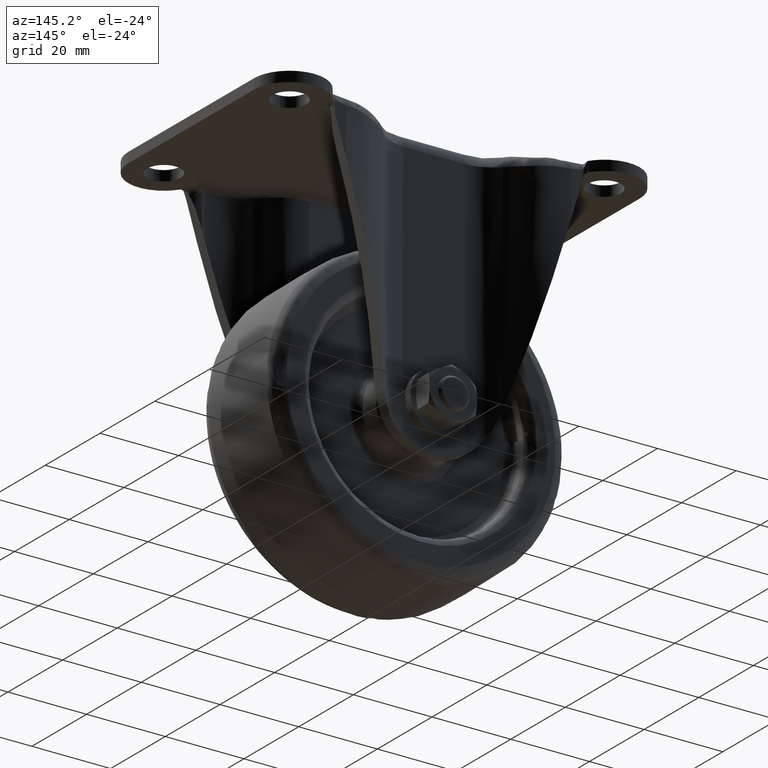
[diagram: clean part render]
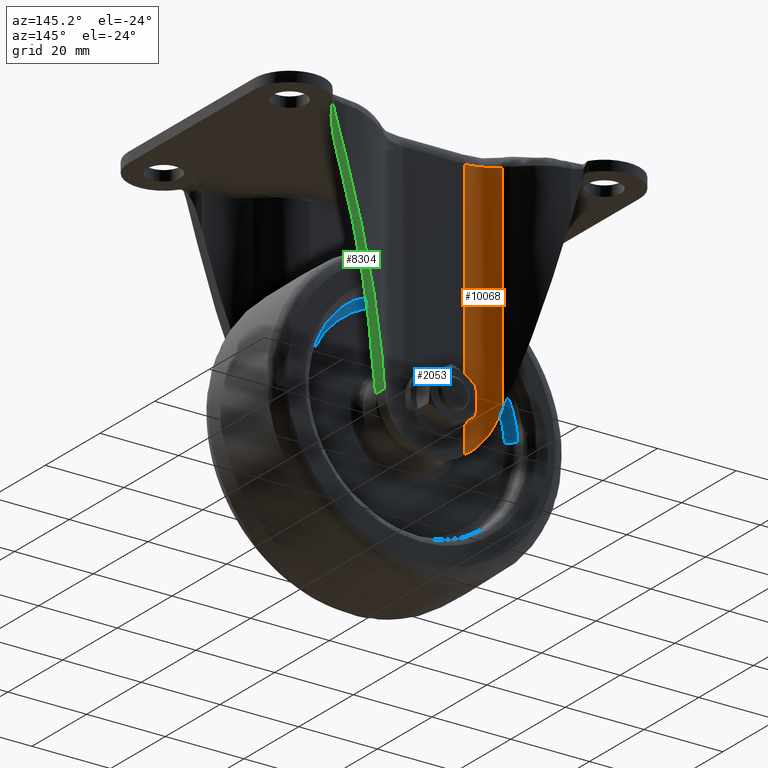
[diagram: same view with three faces highlighted in distinct colors, each labeled with its STEP entity id]
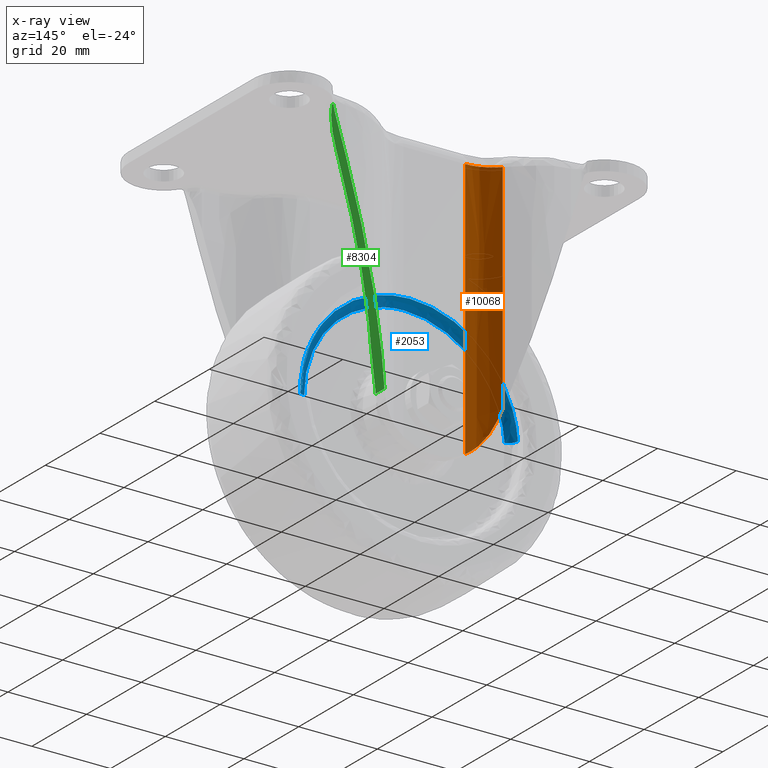
[diagram: x-ray of the same camera — body ghosted, the three highlighted faces saturated]
A machine part, auxiliary view with three faces highlighted in distinct colors.
The next image is the same camera in x-ray (body ghosted, the three faces saturated) — at least one of them is partly hidden behind the body in this view.
Their STEP definitions:

[orange] entity #10068 — the highlighted face is a freeform B-spline surface patch.
#5801=CARTESIAN_POINT('',(-7.828835999999789,18.399999999999999,-3.499999999999950));
#5802=VERTEX_POINT('',#5801);
#5849=CARTESIAN_POINT('',(-15.163778496053350,21.603043432565698,-3.499999999999950));
#5850=VERTEX_POINT('',#5849);
#5880=CARTESIAN_POINT('',(-15.163778496053331,21.603043432565720,-3.499999999999950));
#5881=CARTESIAN_POINT('',(-12.195664280233867,18.399999999999995,-3.499999999999950));
#5882=CARTESIAN_POINT('',(-7.828835999999799,18.399999999999999,-3.499999999999950));
#5890=(BOUNDED_CURVE()B_SPLINE_CURVE(2,(#5880,#5881,#5882),.UNSPECIFIED.,.F.,.U.)CURVE()GEOMETRIC_REPRESENTATION_ITEM()QUASI_UNIFORM_CURVE()RATIONAL_B_SPLINE_CURVE((1.0,0.916432118801886,1.0))REPRESENTATION_ITEM(''));
#5891=EDGE_CURVE('',#5850,#5802,#5890,.T.);
#8428=CARTESIAN_POINT('',(-14.361851424905581,20.829021895557801,-61.328649590222902));
#8429=VERTEX_POINT('',#8428);
#8435=CARTESIAN_POINT('',(-7.828835999999799,18.399999999999999,-69.794892671915406));
#8436=VERTEX_POINT('',#8435);
#8437=CARTESIAN_POINT('',(-14.361851424905581,20.829021895557801,-61.328649590222902));
#8438=CARTESIAN_POINT('',(-14.229742719177811,20.715024971992879,-61.766967530966170));
#8439=CARTESIAN_POINT('',(-14.079463098631701,20.591392774093869,-62.193265368079381));
#8440=CARTESIAN_POINT('',(-13.743893704264391,20.334221780271609,-63.025501558111571));
#8441=CARTESIAN_POINT('',(-13.558593913236880,20.200660019163120,-63.431427575738752));
#8442=CARTESIAN_POINT('',(-13.152698675603530,19.931482533703651,-64.225319654642092));
#8443=CARTESIAN_POINT('',(-12.932104136858030,19.795841396506049,-64.613277942637040));
#8444=CARTESIAN_POINT('',(-12.573445080552039,19.596170866581460,-65.182834757124013));
#8445=CARTESIAN_POINT('',(-12.449252792289290,19.530242418043400,-65.370616887178429));
#8446=CARTESIAN_POINT('',(-12.255731228830280,19.432959721444050,-65.649266314810632));
#8447=CARTESIAN_POINT('',(-12.189955201158710,19.400772433961809,-65.741727182064977));
#8448=CARTESIAN_POINT('',(-12.056523412863941,19.337322878356058,-65.924855429319507));
#8449=CARTESIAN_POINT('',(-11.988815543779991,19.306032807397489,-66.015601874931477));
#8450=CARTESIAN_POINT('',(-11.645297732245959,19.152009649490939,-66.465302717673325));
#8451=CARTESIAN_POINT('',(-11.354596849387530,19.036545970318912,-66.812201755707562));
#8452=CARTESIAN_POINT('',(-10.740246316229790,18.827698766567359,-67.481091519652637));
#8453=CARTESIAN_POINT('',(-10.416605952523661,18.734280030062560,-67.803080725821914));
#8454=CARTESIAN_POINT('',(-9.904615697483491,18.616247518787969,-68.267280668612798));
#8455=CARTESIAN_POINT('',(-9.729520057203363,18.580595815333709,-68.418876136122250));
#8456=CARTESIAN_POINT('',(-9.370007813875763,18.517789322865870,-68.715683727414174));
#8457=CARTESIAN_POINT('',(-9.185184799140624,18.490604748583120,-68.861175520380314));
#8458=CARTESIAN_POINT('',(-8.621475306517128,18.424284076583739,-69.283758163568848));
#8459=CARTESIAN_POINT('',(-8.232149361881449,18.399999999999999,-69.548116572966947));
#8460=CARTESIAN_POINT('',(-7.828835999999821,18.399999999999999,-69.794892671915406));
#8461=B_SPLINE_CURVE_WITH_KNOTS('',3,(#8437,#8438,#8439,#8440,#8441,#8442,#8443,#8444,#8445,#8446,#8447,#8448,#8449,#8450,#8451,#8452,#8453,#8454,#8455,#8456,#8457,#8458,#8459,#8460),.UNSPECIFIED.,.F.,.U.,(4,2,2,2,2,2,2,2,2,2,2,4),(0.0,0.124999999999997,0.249999999999995,0.374999999999993,0.437499999999993,0.468749999999994,0.499999999999994,0.624999999999997,0.750000000000000,0.812500000000000,0.875000000000000,1.0),.UNSPECIFIED.);
#8462=EDGE_CURVE('',#8429,#8436,#8461,.T.);
#8538=CARTESIAN_POINT('',(-15.163778496053350,21.603043432565698,-58.667969353327187));
#8539=VERTEX_POINT('',#8538);
#8553=CARTESIAN_POINT('',(-14.361851424905581,20.829021895557801,-61.328649590223009));
#8554=CARTESIAN_POINT('',(-14.784415449288492,21.193653420206388,-59.926642114793033));
#8555=CARTESIAN_POINT('',(-15.163778496053309,21.603043432565681,-58.667969353327187));
#8563=(BOUNDED_CURVE()B_SPLINE_CURVE(2,(#8553,#8554,#8555),.UNSPECIFIED.,.F.,.U.)CURVE()GEOMETRIC_REPRESENTATION_ITEM()QUASI_UNIFORM_CURVE()RATIONAL_B_SPLINE_CURVE((1.0,0.998446047156305,1.0))REPRESENTATION_ITEM(''));
#8564=EDGE_CURVE('',#8429,#8539,#8563,.T.);
#10034=CARTESIAN_POINT('',(-15.163778496053350,21.603043432565698,-58.667969353327187));
#10035=CARTESIAN_POINT('',(-15.163778496053350,21.603043432565698,-3.499999999999950));
#10036=QUASI_UNIFORM_CURVE('',1,(#10034,#10035),.UNSPECIFIED.,.F.,.U.);
#10037=EDGE_CURVE('',#8539,#5850,#10036,.T.);
#10043=CARTESIAN_POINT('',(-7.567066516921053,18.403426750244439,-71.452264988713296));
#10044=CARTESIAN_POINT('',(-7.567066516921053,18.403426750244439,-1.801193375282111));
#10045=CARTESIAN_POINT('',(-12.331852726189346,18.278656432274584,-71.452264988713296));
#10046=CARTESIAN_POINT('',(-12.331852726189346,18.278656432274584,-1.801193375282111));
#10047=CARTESIAN_POINT('',(-15.429364284750628,21.901387087023700,-71.452264988713296));
#10048=CARTESIAN_POINT('',(-15.429364284750628,21.901387087023700,-1.801193375282111));
#10056=(BOUNDED_SURFACE()B_SPLINE_SURFACE(1,2,((#10043,#10045,#10047),(#10044,#10046,#10048)),.UNSPECIFIED.,.F.,.F.,.U.)B_SPLINE_SURFACE_WITH_KNOTS((2,2),(3,3),(0.0,69.651071613431199),(0.0,9.045352178988637),.UNSPECIFIED.)GEOMETRIC_REPRESENTATION_ITEM()RATIONAL_B_SPLINE_SURFACE(((1.0,0.900867247596464,0.995938536353401),(1.0,0.900867247596464,0.995938536353401)))REPRESENTATION_ITEM('')SURFACE());
#10057=ORIENTED_EDGE('',*,*,#10037,.T.);
#10058=ORIENTED_EDGE('',*,*,#5891,.T.);
#10059=CARTESIAN_POINT('',(-7.828835999999799,18.399999999999999,-69.794892671915406));
#10060=CARTESIAN_POINT('',(-7.828835999999789,18.399999999999999,-3.499999999999950));
#10061=QUASI_UNIFORM_CURVE('',1,(#10059,#10060),.UNSPECIFIED.,.F.,.U.);
#10062=EDGE_CURVE('',#8436,#5802,#10061,.T.);
#10063=ORIENTED_EDGE('',*,*,#10062,.F.);
#10064=ORIENTED_EDGE('',*,*,#8462,.F.);
#10065=ORIENTED_EDGE('',*,*,#8564,.T.);
#10066=EDGE_LOOP('',(#10057,#10058,#10063,#10064,#10065));
#10067=FACE_OUTER_BOUND('',#10066,.T.);
#10068=ADVANCED_FACE('',(#10067),#10056,.F.);

[blue] entity #2053 — the highlighted face is a freeform B-spline surface patch.
#519=CARTESIAN_POINT('',(27.497828715604360,9.499999998754477,-60.845566096838347));
#520=VERTEX_POINT('',#519);
#534=CARTESIAN_POINT('',(0.0,9.500000000000000,-33.0));
#535=VERTEX_POINT('',#534);
#536=CARTESIAN_POINT('',(27.497828715604353,9.499999998754477,-60.845566096838340));
#537=CARTESIAN_POINT('',(27.499999999999996,9.500000000000002,-60.672789869823127));
#538=CARTESIAN_POINT('',(27.500000000000000,9.500000000000000,-60.500000000000000));
#539=CARTESIAN_POINT('',(27.499999999999993,9.500000000000000,-33.0));
#540=CARTESIAN_POINT('',(0.0,9.500000000000000,-33.0));
#548=(BOUNDED_CURVE()B_SPLINE_CURVE(2,(#536,#537,#538,#539,#540),.UNSPECIFIED.,.F.,.U.)B_SPLINE_CURVE_WITH_KNOTS((3,2,3),(0.247784295921138,0.250000000000000,0.500000000000000),.UNSPECIFIED.)CURVE()GEOMETRIC_REPRESENTATION_ITEM()RATIONAL_B_SPLINE_CURVE((0.994854295642653,0.997404141201616,1.0,0.707106781186547,1.0))REPRESENTATION_ITEM(''));
#549=EDGE_CURVE('',#520,#535,#548,.T.);
#551=CARTESIAN_POINT('',(-27.433056030608761,9.499999998756984,-58.582335581630637));
#552=VERTEX_POINT('',#551);
#553=CARTESIAN_POINT('',(0.0,9.500000000000000,-33.0));
#554=CARTESIAN_POINT('',(-25.644763299748281,9.500000000000000,-33.0));
#555=CARTESIAN_POINT('',(-27.433056030608757,9.499999998756984,-58.582335581630637));
#563=(BOUNDED_CURVE()B_SPLINE_CURVE(2,(#553,#554,#555),.UNSPECIFIED.,.F.,.U.)B_SPLINE_CURVE_WITH_KNOTS((3,3),(0.500000000000000,0.737833686534574),.UNSPECIFIED.)CURVE()GEOMETRIC_REPRESENTATION_ITEM()RATIONAL_B_SPLINE_CURVE((1.0,0.721360504034475,0.972879876385882))REPRESENTATION_ITEM(''));
#564=EDGE_CURVE('',#535,#552,#563,.T.);
#1927=CARTESIAN_POINT('',(-25.437924695424702,7.500000000000000,-58.721802069561882));
#1928=VERTEX_POINT('',#1927);
#1946=CARTESIAN_POINT('',(25.497986633708770,7.500000000000000,-60.820434017452072));
#1947=VERTEX_POINT('',#1946);
#1961=CARTESIAN_POINT('',(27.497828715604353,9.499999998754477,-60.845566096838354));
#1962=CARTESIAN_POINT('',(27.497828713114082,7.500000013032621,-60.845566096760898));
#1963=CARTESIAN_POINT('',(25.497986633708770,7.500000000000000,-60.820434017452072));
#1971=(BOUNDED_CURVE()B_SPLINE_CURVE(2,(#1961,#1962,#1963),.UNSPECIFIED.,.F.,.U.)B_SPLINE_CURVE_WITH_KNOTS((3,3),(-1.725134642004536,-0.274865363400632),.UNSPECIFIED.)CURVE()GEOMETRIC_REPRESENTATION_ITEM()RATIONAL_B_SPLINE_CURVE((0.883342149197332,0.624617225547578,0.883342147268791))REPRESENTATION_ITEM(''));
#1972=EDGE_CURVE('',#520,#1947,#1971,.T.);
#1978=CARTESIAN_POINT('',(-27.433056030608764,9.499999998756984,-58.582335581630637));
#1979=CARTESIAN_POINT('',(-27.433056028131904,7.500000027055394,-58.582335581848703));
#1980=CARTESIAN_POINT('',(-25.437924695424702,7.500000000000000,-58.721802069561882));
#1988=(BOUNDED_CURVE()B_SPLINE_CURVE(2,(#1978,#1979,#1980),.UNSPECIFIED.,.F.,.U.)B_SPLINE_CURVE_WITH_KNOTS((3,3),(-1.725134642007106,-0.274865370590774),.UNSPECIFIED.)CURVE()GEOMETRIC_REPRESENTATION_ITEM()RATIONAL_B_SPLINE_CURVE((0.863472074928123,0.610566962502720,0.863472070534362))REPRESENTATION_ITEM(''));
#1989=EDGE_CURVE('',#552,#1928,#1988,.T.);
#1994=CARTESIAN_POINT('',(27.492987825702340,9.639074263184599,-60.845505261173294));
#1995=CARTESIAN_POINT('',(27.838493086875623,9.639074263184600,-33.352517435470958));
#1996=CARTESIAN_POINT('',(0.345505261173288,9.639074263184599,-33.007012174297664));
#1997=CARTESIAN_POINT('',(-25.617592365178872,9.639074263184599,-32.680733092404857));
#1998=CARTESIAN_POINT('',(-27.428226543698241,9.639074263184600,-58.582673179324068));
#1999=CARTESIAN_POINT('',(27.652890887538753,7.344924551075451,-60.847514768088004));
#2000=CARTESIAN_POINT('',(28.000405655626757,7.344924551075453,-33.194623880549251));
#2001=CARTESIAN_POINT('',(0.347514768088013,7.344924551075451,-32.847109112461261));
#2002=CARTESIAN_POINT('',(-25.766587864760027,7.344924551075450,-32.518932345801019));
#2003=CARTESIAN_POINT('',(-27.587752944862228,7.344924551075452,-58.571521738414425));
#2004=CARTESIAN_POINT('',(25.358922388491408,7.504841338810154,-60.818686392270472));
#2005=CARTESIAN_POINT('',(25.677608780761869,7.504841338810153,-35.459764003779050));
#2006=CARTESIAN_POINT('',(0.318686392270464,7.504841338810154,-35.141077611508599));
#2007=CARTESIAN_POINT('',(-23.629099197478212,7.504841338810155,-34.840125020718411));
#2008=CARTESIAN_POINT('',(-25.299188017875419,7.504841338810155,-58.731500252095579));
#2016=(BOUNDED_SURFACE()B_SPLINE_SURFACE(2,2,((#1994,#1999,#2004),(#1995,#2000,#2005),(#1996,#2001,#2006),(#1997,#2002,#2007),(#1998,#2003,#2008)),.UNSPECIFIED.,.F.,.F.,.U.)B_SPLINE_SURFACE_WITH_KNOTS((3,2,3),(3,3),(0.0,45.555470578707258,89.288722334266225),(0.0,3.644749089689540),.UNSPECIFIED.)GEOMETRIC_REPRESENTATION_ITEM()RATIONAL_B_SPLINE_SURFACE(((0.910479804438129,0.597479469929816,0.910480003263582),(0.643806443851603,0.422481784807117,0.643806584442429),(0.910479804438129,0.597479469929816,0.910480003263582),(0.654473378275064,0.429481692212025,0.654473521195275),(0.889999290345084,0.584039647712393,0.889999484698117)))REPRESENTATION_ITEM('')SURFACE());
#2017=CARTESIAN_POINT('',(0.0,7.500000000000000,-35.0));
#2018=VERTEX_POINT('',#2017);
#2019=CARTESIAN_POINT('',(0.0,7.500000000000000,-35.0));
#2020=CARTESIAN_POINT('',(-23.779689578458427,7.500000000000000,-35.000000000000007));
#2021=CARTESIAN_POINT('',(-25.437924695424702,7.500000000000000,-58.721802069561875));
#2029=(BOUNDED_CURVE()B_SPLINE_CURVE(2,(#2019,#2020,#2021),.UNSPECIFIED.,.F.,.U.)B_SPLINE_CURVE_WITH_KNOTS((3,3),(0.500000000000000,0.737833686341489),.UNSPECIFIED.)CURVE()GEOMETRIC_REPRESENTATION_ITEM()RATIONAL_B_SPLINE_CURVE((1.0,0.721360504260689,0.972879875977489))REPRESENTATION_ITEM(''));
#2030=EDGE_CURVE('',#2018,#1928,#2029,.T.);
#2031=ORIENTED_EDGE('',*,*,#2030,.T.);
#2032=ORIENTED_EDGE('',*,*,#1989,.F.);
#2033=ORIENTED_EDGE('',*,*,#564,.F.);
#2034=ORIENTED_EDGE('',*,*,#549,.F.);
#2035=ORIENTED_EDGE('',*,*,#1972,.T.);
#2036=CARTESIAN_POINT('',(25.497986633708770,7.500000000000000,-60.820434017452072));
#2037=CARTESIAN_POINT('',(25.500000000000004,7.500000000000000,-60.660223334137925));
#2038=CARTESIAN_POINT('',(25.500000000000000,7.500000000000000,-60.500000000000000));
#2039=CARTESIAN_POINT('',(25.499999999999993,7.500000000000000,-34.999999999999993));
#2040=CARTESIAN_POINT('',(0.0,7.500000000000000,-35.0));
#2048=(BOUNDED_CURVE()B_SPLINE_CURVE(2,(#2036,#2037,#2038,#2039,#2040),.UNSPECIFIED.,.F.,.U.)B_SPLINE_CURVE_WITH_KNOTS((3,2,3),(0.247784295916973,0.250000000000000,0.500000000000000),.UNSPECIFIED.)CURVE()GEOMETRIC_REPRESENTATION_ITEM()RATIONAL_B_SPLINE_CURVE((0.994854295633068,0.997404141196737,1.0,0.707106781186548,1.0))REPRESENTATION_ITEM(''));
#2049=EDGE_CURVE('',#1947,#2018,#2048,.T.);
#2050=ORIENTED_EDGE('',*,*,#2049,.T.);
#2051=EDGE_LOOP('',(#2031,#2032,#2033,#2034,#2035,#2050));
#2052=FACE_OUTER_BOUND('',#2051,.T.);
#2053=ADVANCED_FACE('',(#2052),#2016,.F.);

[green] entity #8304 — the highlighted face is a freeform B-spline surface patch.
#6985=CARTESIAN_POINT('',(31.914846347276349,26.953557109438599,-3.090303026560280));
#6986=VERTEX_POINT('',#6985);
#6996=CARTESIAN_POINT('',(31.907212706544851,27.345466151797751,-3.115630363372560));
#6997=VERTEX_POINT('',#6996);
#6998=CARTESIAN_POINT('',(31.907212706544851,27.345466151797751,-3.115630363372560));
#6999=CARTESIAN_POINT('',(31.905102788736770,27.312865420397468,-3.122630771284181));
#7000=CARTESIAN_POINT('',(31.903555289232258,27.280197230824498,-3.127765155066118));
#7001=CARTESIAN_POINT('',(31.901984343445751,27.214678052070369,-3.132977330284722));
#7002=CARTESIAN_POINT('',(31.901970546979211,27.181825905460830,-3.133023105003195));
#7003=CARTESIAN_POINT('',(31.903515633185481,27.115932980292339,-3.127896728202571));
#7004=CARTESIAN_POINT('',(31.905081287429550,27.082732048918320,-3.122702109570935));
#7005=CARTESIAN_POINT('',(31.909289506128150,27.017560553261241,-3.108739837031726));
#7006=CARTESIAN_POINT('',(31.911918179550959,26.985429134239510,-3.100018271596306));
#7007=CARTESIAN_POINT('',(31.914846347276349,26.953557109438599,-3.090303026560240));
#7008=B_SPLINE_CURVE_WITH_KNOTS('',3,(#6998,#6999,#7000,#7001,#7002,#7003,#7004,#7005,#7006,#7007),.UNSPECIFIED.,.F.,.U.,(4,2,2,2,4),(0.0,0.250000000000000,0.500000000000000,0.750000000000000,1.0),.UNSPECIFIED.);
#7009=EDGE_CURVE('',#6997,#6986,#7008,.T.);
#8142=CARTESIAN_POINT('',(32.791618595626680,17.140506102054019,-0.181297111464247));
#8143=CARTESIAN_POINT('',(13.485078437777890,17.140506102054019,-64.237657956478856));
#8144=CARTESIAN_POINT('',(32.791618595626680,27.830954041092301,-0.181297111464247));
#8145=CARTESIAN_POINT('',(13.485078437777890,27.830954041092301,-64.237657956478856));
#8146=B_SPLINE_SURFACE_WITH_KNOTS('',1,1,((#8142,#8144),(#8143,#8145)),.UNSPECIFIED.,.F.,.F.,.U.,(2,2),(2,2),(0.0,66.902614728972651),(0.0,10.690447939038290),.UNSPECIFIED.);
#8147=CARTESIAN_POINT('',(31.317456823182301,27.197594999999801,-5.072356704098450));
#8148=VERTEX_POINT('',#8147);
#8149=CARTESIAN_POINT('',(31.907212706544851,27.345466151797751,-3.115630363372560));
#8150=CARTESIAN_POINT('',(31.630872839812000,27.197594999999797,-4.032486831418074));
#8151=CARTESIAN_POINT('',(31.317456823182301,27.197594999999801,-5.072356704098450));
#8159=(BOUNDED_CURVE()B_SPLINE_CURVE(2,(#8149,#8150,#8151),.UNSPECIFIED.,.F.,.U.)CURVE()GEOMETRIC_REPRESENTATION_ITEM()QUASI_UNIFORM_CURVE()RATIONAL_B_SPLINE_CURVE((1.0,0.969975019926198,1.0))REPRESENTATION_ITEM(''));
#8160=EDGE_CURVE('',#6997,#8148,#8159,.T.);
#8161=ORIENTED_EDGE('',*,*,#8160,.F.);
#8162=ORIENTED_EDGE('',*,*,#7009,.T.);
#8163=CARTESIAN_POINT('',(31.609893692515801,26.256754788583699,-4.102092665422385));
#8164=VERTEX_POINT('',#8163);
#8165=CARTESIAN_POINT('',(31.609893692515801,26.256754788583699,-4.102092665422385));
#8166=CARTESIAN_POINT('',(31.747634754584652,26.611604776950969,-3.645087365511976));
#8167=CARTESIAN_POINT('',(31.914846347276349,26.953557109438599,-3.090303026560280));
#8175=(BOUNDED_CURVE()B_SPLINE_CURVE(2,(#8165,#8166,#8167),.UNSPECIFIED.,.F.,.U.)CURVE()GEOMETRIC_REPRESENTATION_ITEM()QUASI_UNIFORM_CURVE()RATIONAL_B_SPLINE_CURVE((1.0,0.999106808518211,1.0))REPRESENTATION_ITEM(''));
#8176=EDGE_CURVE('',#8164,#6986,#8175,.T.);
#8177=ORIENTED_EDGE('',*,*,#8176,.F.);
#8178=CARTESIAN_POINT('',(29.186091000000200,24.597594999999998,-12.143926086610300));
#8179=VERTEX_POINT('',#8178);
#8180=CARTESIAN_POINT('',(31.609893692515801,26.256754788583699,-4.102092665422385));
#8181=CARTESIAN_POINT('',(30.965862616039995,24.597595697145209,-6.238896395808312));
#8182=CARTESIAN_POINT('',(29.186091000000200,24.597594999999998,-12.143926086610300));
#8190=(BOUNDED_CURVE()B_SPLINE_CURVE(2,(#8180,#8181,#8182),.UNSPECIFIED.,.F.,.U.)CURVE()GEOMETRIC_REPRESENTATION_ITEM()QUASI_UNIFORM_CURVE()RATIONAL_B_SPLINE_CURVE((1.0,0.825185429141622,1.0))REPRESENTATION_ITEM(''));
#8191=EDGE_CURVE('',#8164,#8179,#8190,.T.);
#8192=ORIENTED_EDGE('',*,*,#8191,.T.);
#8193=CARTESIAN_POINT('',(28.582093000000100,24.597594999999998,-14.147905749530180));
#8194=VERTEX_POINT('',#8193);
#8195=CARTESIAN_POINT('',(29.186091000000200,24.597594999999998,-12.143926086610300));
#8196=CARTESIAN_POINT('',(28.582093000000100,24.597594999999998,-14.147905749530180));
#8197=QUASI_UNIFORM_CURVE('',1,(#8195,#8196),.UNSPECIFIED.,.F.,.U.);
#8198=EDGE_CURVE('',#8179,#8194,#8197,.T.);
#8199=ORIENTED_EDGE('',*,*,#8198,.T.);
#8200=CARTESIAN_POINT('',(18.595538901972500,21.205555707345798,-47.281875257860698));
#8201=VERTEX_POINT('',#8200);
#8202=CARTESIAN_POINT('',(18.595538901972422,21.205555707345749,-47.281875257860690));
#8203=CARTESIAN_POINT('',(23.012744843276412,24.597595000000005,-32.626212700533891));
#8204=CARTESIAN_POINT('',(28.582093000000100,24.597594999999998,-14.147905749530191));
#8212=(BOUNDED_CURVE()B_SPLINE_CURVE(2,(#8202,#8203,#8204),.UNSPECIFIED.,.F.,.U.)CURVE()GEOMETRIC_REPRESENTATION_ITEM()QUASI_UNIFORM_CURVE()RATIONAL_B_SPLINE_CURVE((1.0,0.946870634187416,1.0))REPRESENTATION_ITEM(''));
#8213=EDGE_CURVE('',#8201,#8194,#8212,.T.);
#8214=ORIENTED_EDGE('',*,*,#8213,.F.);
#8215=CARTESIAN_POINT('',(17.009502742685601,19.770131138357051,-52.544118192217802));
#8216=VERTEX_POINT('',#8215);
#8217=CARTESIAN_POINT('',(17.009502742685601,19.770131138357051,-52.544118192217802));
#8218=CARTESIAN_POINT('',(17.744458302744661,20.551998115501757,-50.105639926548164));
#8219=CARTESIAN_POINT('',(18.595538901972500,21.205555707345798,-47.281875257860698));
#8227=(BOUNDED_CURVE()B_SPLINE_CURVE(2,(#8217,#8218,#8219),.UNSPECIFIED.,.F.,.U.)CURVE()GEOMETRIC_REPRESENTATION_ITEM()QUASI_UNIFORM_CURVE()RATIONAL_B_SPLINE_CURVE((1.0,0.996743617053178,1.0))REPRESENTATION_ITEM(''));
#8228=EDGE_CURVE('',#8216,#8201,#8227,.T.);
#8229=ORIENTED_EDGE('',*,*,#8228,.F.);
#8230=CARTESIAN_POINT('',(14.361851000000200,17.625994599640499,-61.328651000000001));
#8231=VERTEX_POINT('',#8230);
#8232=CARTESIAN_POINT('',(17.009502742685601,19.770131138357051,-52.544118192217802));
#8233=CARTESIAN_POINT('',(15.831960261919786,18.517427665360906,-56.451037062277742));
#8234=CARTESIAN_POINT('',(14.361851000000220,17.625994599640560,-61.328651000000008));
#8242=(BOUNDED_CURVE()B_SPLINE_CURVE(2,(#8232,#8233,#8234),.UNSPECIFIED.,.F.,.U.)CURVE()GEOMETRIC_REPRESENTATION_ITEM()QUASI_UNIFORM_CURVE()RATIONAL_B_SPLINE_CURVE((1.0,0.990818755273718,1.0))REPRESENTATION_ITEM(''));
#8243=EDGE_CURVE('',#8216,#8231,#8242,.T.);
#8244=ORIENTED_EDGE('',*,*,#8243,.T.);
#8245=CARTESIAN_POINT('',(14.361851000000200,20.829056045183499,-61.328651000000001));
#8246=VERTEX_POINT('',#8245);
#8247=CARTESIAN_POINT('',(14.361851000000200,17.625994599640499,-61.328651000000001));
#8248=CARTESIAN_POINT('',(14.361851000000200,20.829056045183499,-61.328651000000001));
#8249=QUASI_UNIFORM_CURVE('',1,(#8247,#8248),.UNSPECIFIED.,.F.,.U.);
#8250=EDGE_CURVE('',#8231,#8246,#8249,.T.);
#8251=ORIENTED_EDGE('',*,*,#8250,.T.);
#8252=CARTESIAN_POINT('',(15.163738496053551,21.603043432565698,-58.668102067651901));
#8253=VERTEX_POINT('',#8252);
#8254=CARTESIAN_POINT('',(15.163738496053570,21.603043432565759,-58.668102067651901));
#8255=CARTESIAN_POINT('',(14.784393269226403,21.193672650610033,-59.926715705093116));
#8256=CARTESIAN_POINT('',(14.361851000000200,20.829056045183510,-61.328650999999986));
#8264=(BOUNDED_CURVE()B_SPLINE_CURVE(2,(#8254,#8255,#8256),.UNSPECIFIED.,.F.,.U.)CURVE()GEOMETRIC_REPRESENTATION_ITEM()QUASI_UNIFORM_CURVE()RATIONAL_B_SPLINE_CURVE((1.0,0.998446192801458,1.0))REPRESENTATION_ITEM(''));
#8265=EDGE_CURVE('',#8253,#8246,#8264,.T.);
#8266=ORIENTED_EDGE('',*,*,#8265,.F.);
#8267=CARTESIAN_POINT('',(16.392184720503650,22.770783472360300,-54.592291798763199));
#8268=VERTEX_POINT('',#8267);
#8269=CARTESIAN_POINT('',(15.163738496053501,21.603043432565698,-58.668102067651937));
#8270=CARTESIAN_POINT('',(15.740906521763725,22.225894886322052,-56.753140452529593));
#8271=CARTESIAN_POINT('',(16.392184720503622,22.770783472360289,-54.592291798763213));
#8279=(BOUNDED_CURVE()B_SPLINE_CURVE(2,(#8269,#8270,#8271),.UNSPECIFIED.,.F.,.U.)CURVE()GEOMETRIC_REPRESENTATION_ITEM()QUASI_UNIFORM_CURVE()RATIONAL_B_SPLINE_CURVE((1.0,0.997992184481638,1.0))REPRESENTATION_ITEM(''));
#8280=EDGE_CURVE('',#8253,#8268,#8279,.T.);
#8281=ORIENTED_EDGE('',*,*,#8280,.T.);
#8282=CARTESIAN_POINT('',(28.582093000000000,27.197595000000000,-14.147905749530620));
#8283=VERTEX_POINT('',#8282);
#8284=CARTESIAN_POINT('',(16.392184720503622,22.770783472360300,-54.592291798763370));
#8285=CARTESIAN_POINT('',(21.683332143584156,27.197594999999996,-37.037015408175684));
#8286=CARTESIAN_POINT('',(28.582093000000000,27.197595000000000,-14.147905749530629));
#8294=(BOUNDED_CURVE()B_SPLINE_CURVE(2,(#8284,#8285,#8286),.UNSPECIFIED.,.F.,.U.)CURVE()GEOMETRIC_REPRESENTATION_ITEM()QUASI_UNIFORM_CURVE()RATIONAL_B_SPLINE_CURVE((1.0,0.939939013204267,1.0))REPRESENTATION_ITEM(''));
#8295=EDGE_CURVE('',#8268,#8283,#8294,.T.);
#8296=ORIENTED_EDGE('',*,*,#8295,.T.);
#8297=CARTESIAN_POINT('',(28.582093000000000,27.197595000000000,-14.147905749530620));
#8298=CARTESIAN_POINT('',(31.317456823182301,27.197594999999801,-5.072356704098450));
#8299=QUASI_UNIFORM_CURVE('',1,(#8297,#8298),.UNSPECIFIED.,.F.,.U.);
#8300=EDGE_CURVE('',#8283,#8148,#8299,.T.);
#8301=ORIENTED_EDGE('',*,*,#8300,.T.);
#8302=EDGE_LOOP('',(#8161,#8162,#8177,#8192,#8199,#8214,#8229,#8244,#8251,#8266,#8281,#8296,#8301));
#8303=FACE_OUTER_BOUND('',#8302,.T.);
#8304=ADVANCED_FACE('',(#8303),#8146,.T.);